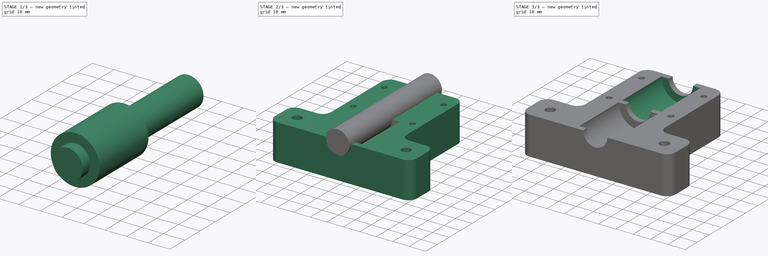
[diagram: build sequence overview — one tinted view per stage of 3, left to right]
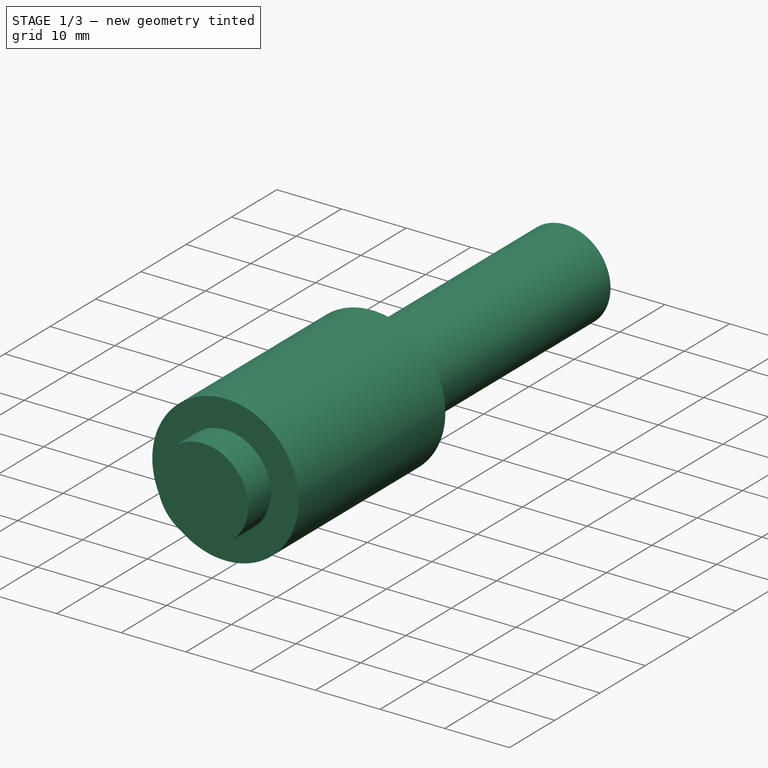
[diagram: stage 1 of 3 — iso view after this stage's code; geometry added in this stage tinted green]
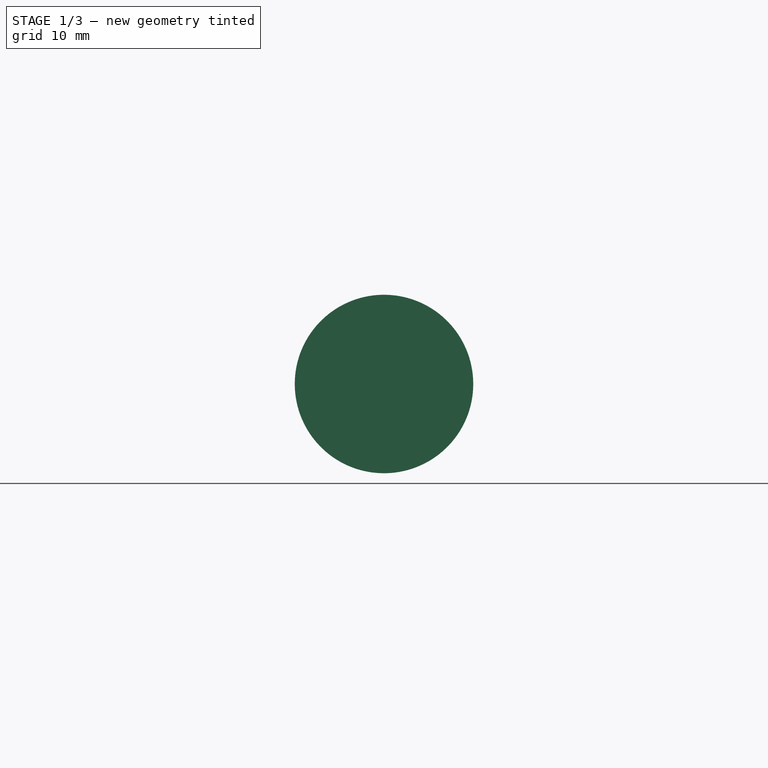
[diagram: stage 1 of 3 — front view after this stage's code; geometry added in this stage tinted green]
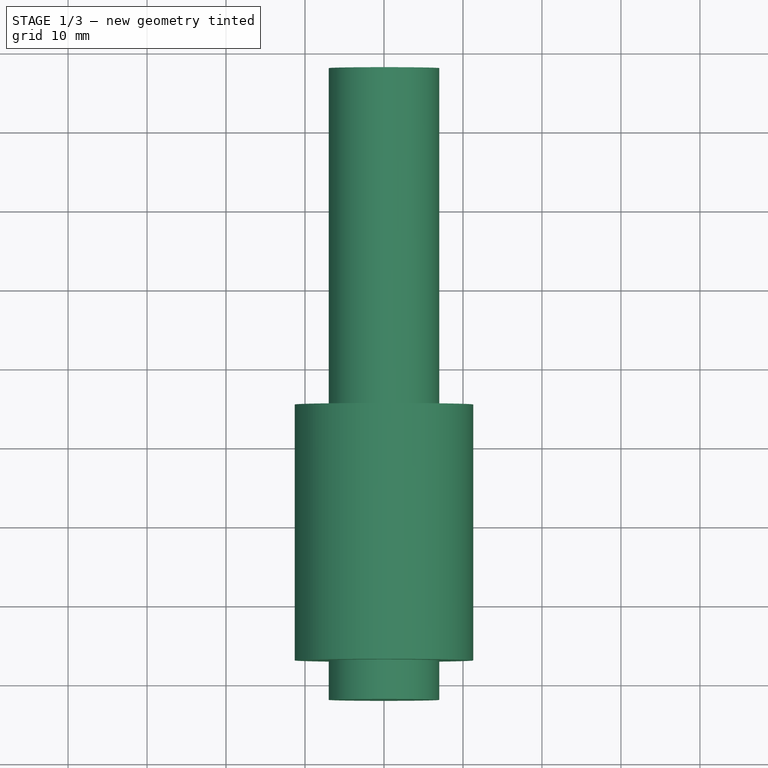
[diagram: stage 1 of 3 — top view after this stage's code; geometry added in this stage tinted green]
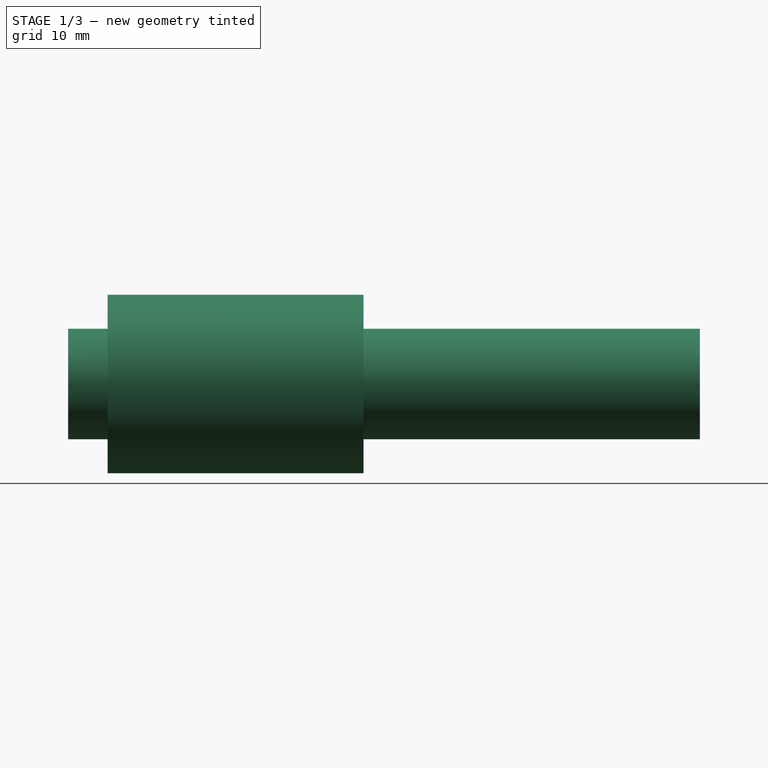
[diagram: stage 1 of 3 — right view after this stage's code; geometry added in this stage tinted green]
FCSTD DOCUMENT  (FreeCAD 0.15R4671 (Git))
Label: CoreXY_Z_Axis_LM12UU_Nut
License: All rights reserved
LicenseURL: http://es.wikipedia.org/wiki/Todos_los_derechos_reservados
objects: Part::Cut×3, Part::Cylinder×2, Sketcher::SketchObject×1, PartDesign::Pad×1, Part::Feature×1
note: 9 computed .brp shape members not serialized (recipe doc carries the construction recipe); baked Part::Feature solids carry a one-line shape summary decoded from their .brp

FEATURE [Part::Cylinder] Cylinder  label="Cilindro"
  Angle = 360
  Height = 32.4
  Placement = pos=(0,3,22) rot=(-1,0,0;1.5708rad)
  Radius = 11.3
FEATURE [Part::Cylinder] Cylinder002  label="Cilindro003"
  Angle = 360
  Height = 80
  Placement = pos=(0,-2,22) rot=(-1,0,0;1.5708rad)
  Radius = 7
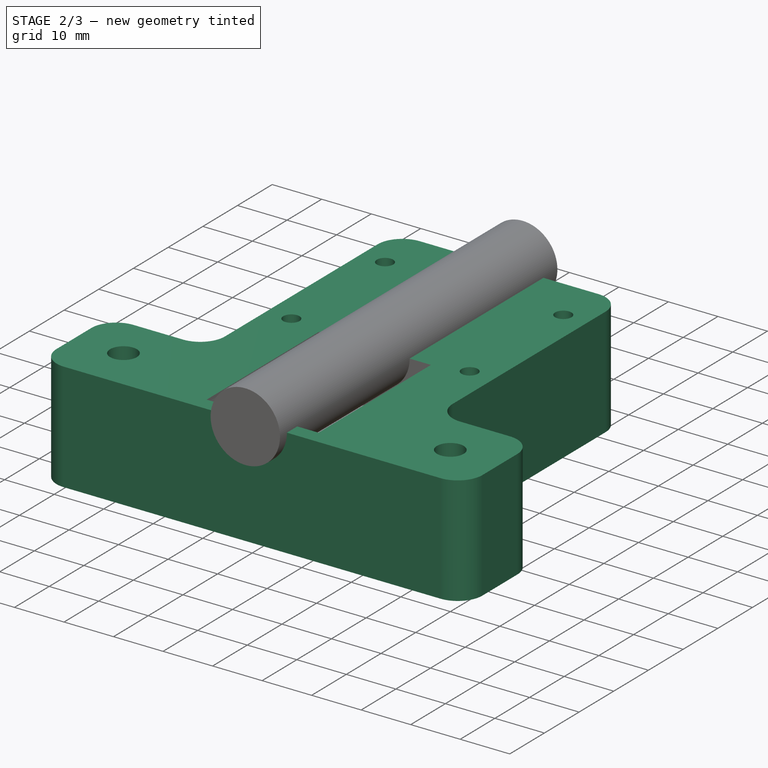
[diagram: stage 2 of 3 — iso view after this stage's code; geometry added in this stage tinted green]
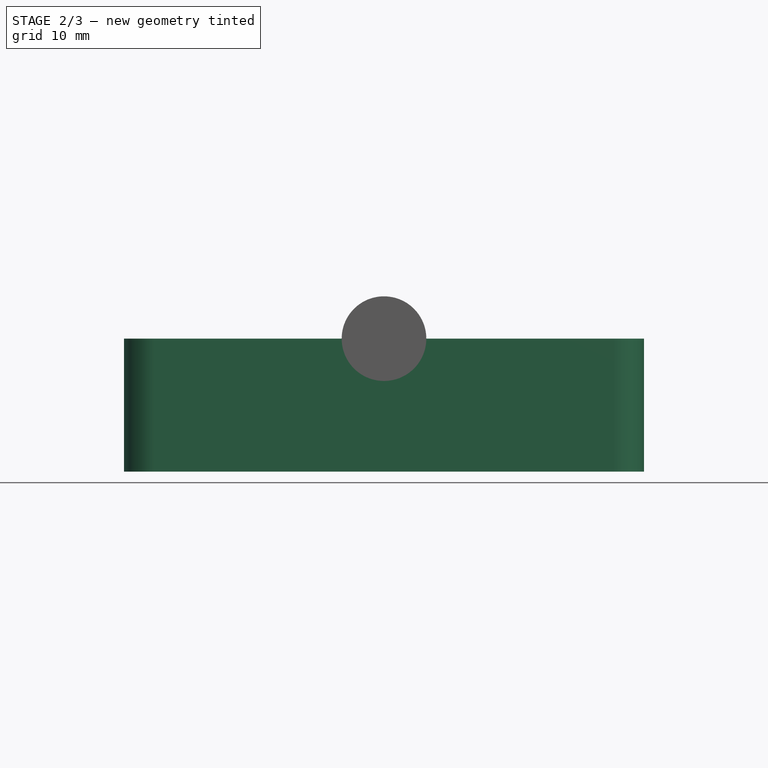
[diagram: stage 2 of 3 — front view after this stage's code; geometry added in this stage tinted green]
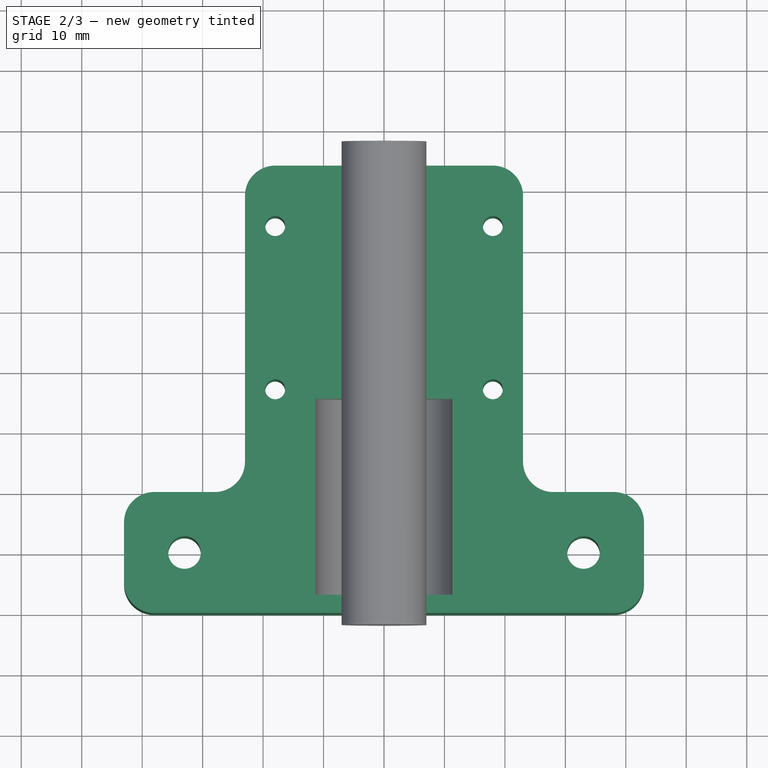
[diagram: stage 2 of 3 — top view after this stage's code; geometry added in this stage tinted green]
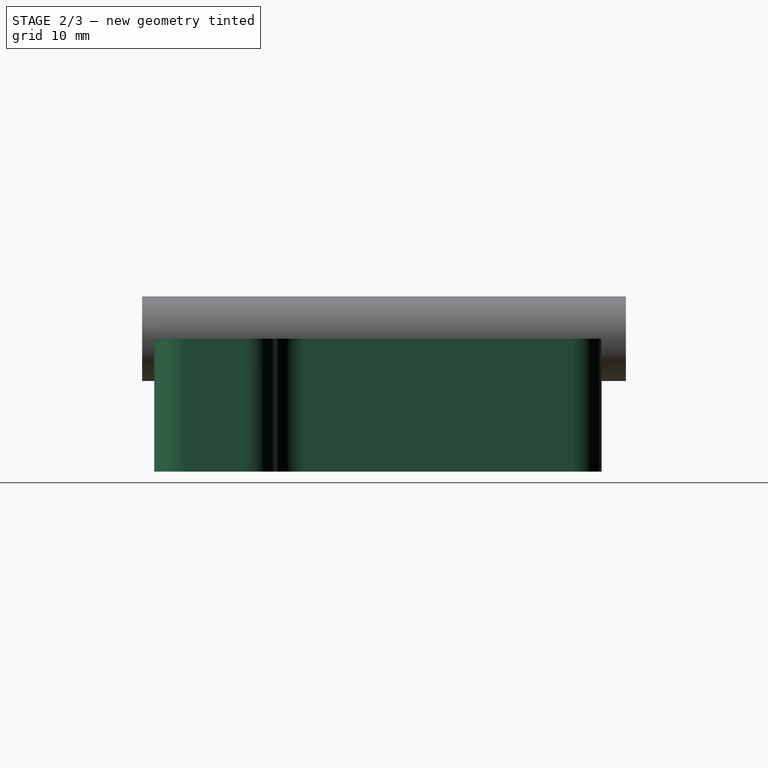
[diagram: stage 2 of 3 — right view after this stage's code; geometry added in this stage tinted green]
FEATURE [Sketcher::SketchObject] Sketch
  sketch-geometry (22):
    g0: LineSegment StartX=-38 StartY=0 StartZ=0 EndX=38 EndY=0 EndZ=0
    g1: ArcOfCircle CenterX=-38 CenterY=5 CenterZ=0 NormalX=0 NormalY=0 NormalZ=1 Radius=5 StartAngle=3.14159 EndAngle=4.71239
    g2: LineSegment StartX=-43 StartY=5 StartZ=0 EndX=-43 EndY=15 EndZ=0
    g3: ArcOfCircle CenterX=-38 CenterY=15 CenterZ=0 NormalX=0 NormalY=0 NormalZ=1 Radius=5 StartAngle=1.5708 EndAngle=3.14159
    g4: LineSegment StartX=-38 StartY=20 StartZ=0 EndX=-28 EndY=20 EndZ=0
    g5: ArcOfCircle CenterX=-28 CenterY=25 CenterZ=0 NormalX=0 NormalY=0 NormalZ=1 Radius=5 StartAngle=4.71239 EndAngle=6.28318
    g6: LineSegment StartX=-23 StartY=25 StartZ=0 EndX=-23 EndY=69 EndZ=0
    g7: ArcOfCircle CenterX=-18 CenterY=69 CenterZ=0 NormalX=0 NormalY=0 NormalZ=1 Radius=5 StartAngle=1.5708 EndAngle=3.14159
    g8: LineSegment StartX=-18 StartY=74 StartZ=0 EndX=18 EndY=74 EndZ=0
    g9: ArcOfCircle CenterX=38 CenterY=5 CenterZ=0 NormalX=0 NormalY=0 NormalZ=1 Radius=5 StartAngle=4.71239 EndAngle=6.28319
    g10: LineSegment StartX=43 StartY=5 StartZ=0 EndX=43 EndY=15 EndZ=0
    g11: ArcOfCircle CenterX=18 CenterY=69 CenterZ=0 NormalX=0 NormalY=0 NormalZ=1 Radius=5 StartAngle=6.28318 EndAngle=7.85398
    g12: LineSegment StartX=23 StartY=69 StartZ=0 EndX=23 EndY=25 EndZ=0
    g13: ArcOfCircle CenterX=28 CenterY=25 CenterZ=0 NormalX=0 NormalY=0 NormalZ=1 Radius=5 StartAngle=3.14159 EndAngle=4.71239
    g14: LineSegment StartX=28 StartY=20 StartZ=0 EndX=38 EndY=20 EndZ=0
    g15: ArcOfCircle CenterX=38 CenterY=15 CenterZ=0 NormalX=0 NormalY=0 NormalZ=1 Radius=5 StartAngle=1.46702e-07 EndAngle=1.5708
    g16: Circle CenterX=33 CenterY=10 CenterZ=0 NormalX=0 NormalY=0 NormalZ=1 Radius=2.7
    g17: Circle CenterX=-33 CenterY=10 CenterZ=0 NormalX=0 NormalY=0 NormalZ=1 Radius=2.7
    g18: Circle CenterX=18 CenterY=64 CenterZ=0 NormalX=0 NormalY=0 NormalZ=1 Radius=1.65
    g19: Circle CenterX=18 CenterY=37 CenterZ=0 NormalX=0 NormalY=0 NormalZ=1 Radius=1.65
    g20: Circle CenterX=-18 CenterY=37 CenterZ=0 NormalX=0 NormalY=0 NormalZ=1 Radius=1.65
    g21: Circle CenterX=-18 CenterY=64 CenterZ=0 NormalX=0 NormalY=0 NormalZ=1 Radius=1.65
  constraints (67):
    c: Horizontal(g0)
    c: Vertical(g2)
    c: Coincident(g1,g2)
    c: Coincident(g1,g0)
    c: Coincident(g2,g3)
    c: Tangent(g2,g3)
    c: Tangent(g1,g2)
    c: Tangent(g0,g1)
    c: Horizontal(g4)
    c: Coincident(g3,g4)
    c: Tangent(g4,g5) = -1.5708
    c: Vertical(g6)
    c: Tangent(g4,g3)
    c: Coincident(g6,g7)
    c: Tangent(g7,g6)
    c: Horizontal(g8)
    c: Coincident(g8,g7)
    c: Tangent(g8,g7)
    c: Coincident(g5,g6)
    c: Tangent(g5,g6)
    c: DistanceX(g-1,g6) = -23
    c: Radius(g3) = 5
    c: Radius(g1) = 5
    c: Radius(g5) = 5
    c: Equal(g7,g5)
    c: DistanceY(g3,g0) = -20
    c: DistanceY(g7,g0) = -74
    c: Coincident(g9,g0)
    c: Equal(g9,g1)
    c: Tangent(g9,g0)
    c: DistanceY(g-1,g0) = 0
    c: DistanceX(g2,g5) = 20
    c: Vertical(g10)
    c: Symmetric(g10,g1,g-2)
    c: Coincident(g10,g9)
    c: Symmetric(g10,g2,g-2)
    c: Symmetric(g8,g7,g-2)
    c: Symmetric(g11,g7,g-2)
    c: Coincident(g11,g8)
    c: Vertical(g12)
    c: Coincident(g12,g11)
    c: Coincident(g13,g12)
    c: Tangent(g12,g11)
    c: Tangent(g13,g12)
    c: Horizontal(g14)
    c: Coincident(g13,g14)
    c: Coincident(g15,g14)
    c: Coincident(g15,g10)
    c: Symmetric(g13,g4,g-2)
    c: Symmetric(g14,g3,g-2)
    c: Equal(g13,g5)
    c: Equal(g15,g3)
    c: DistanceY(g16,g0) = -10
    c: DistanceX(g16,g10) = 10
    c: Radius(g16) = 2.7
    c: Symmetric(g17,g16,g-2)
    c: Equal(g17,g16)
    c: DistanceY(g18,g8) = 10
    c: Radius(g18) = 1.65
    c: DistanceX(g18,g11) = 5
    c: DistanceY(g19,g16) = -27
    c: Equal(g19,g18)
    c: DistanceX(g19,g18) = 0
    c: Symmetric(g20,g19,g-2)
    c: Equal(g20,g19)
    c: Equal(g21,g18)
    c: Symmetric(g21,g18,g-2)
FEATURE [PartDesign::Pad] Pad
  Length = 22
  Length2 = 100
  Sketch = -> Sketch
  Type = 0
FEATURE [Part::Feature] Cylinder001  label="Cilindro2"
  Placement = pos=(0,38.4,22) rot=(-1,0,0;1.5708rad)
  shape: bbox 22.6 x 32.4 x 22.6 mm, 3 faces (baked)
FEATURE [Part::Cut] Cut
  Base = -> Pad
  Tool = -> Cylinder
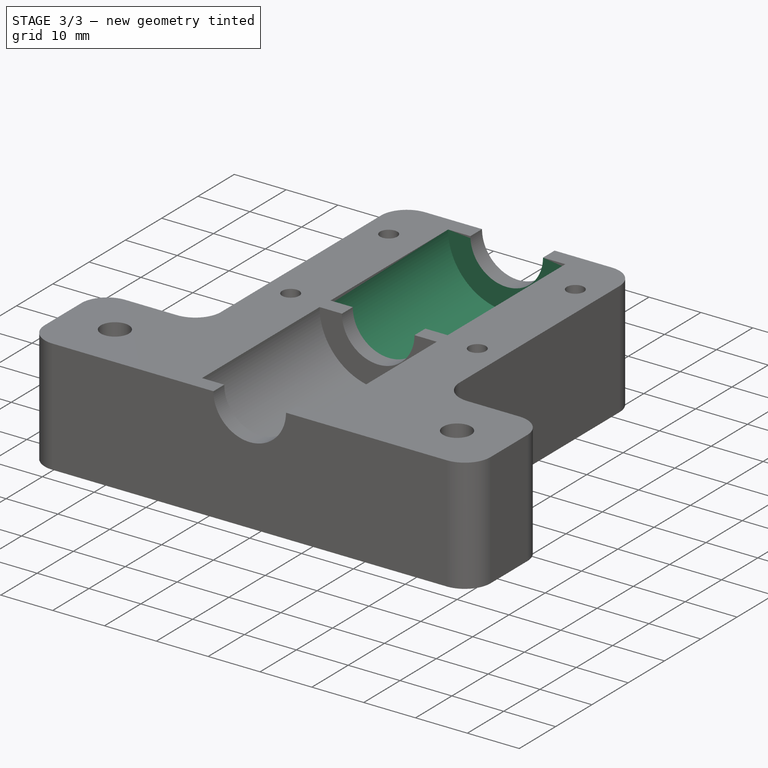
[diagram: stage 3 of 3 — iso view after this stage's code; geometry added in this stage tinted green]
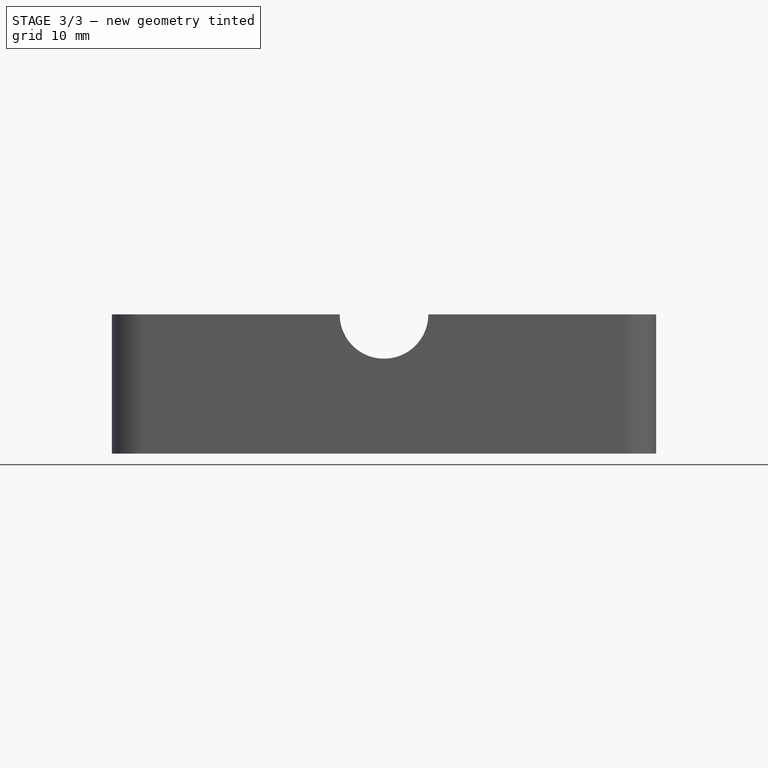
[diagram: stage 3 of 3 — front view after this stage's code; geometry added in this stage tinted green]
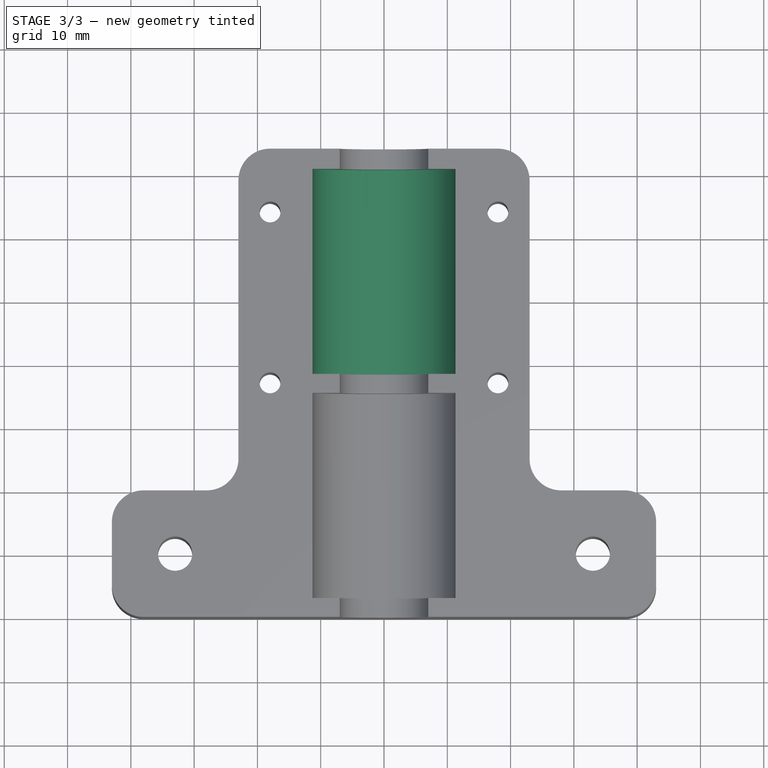
[diagram: stage 3 of 3 — top view after this stage's code; geometry added in this stage tinted green]
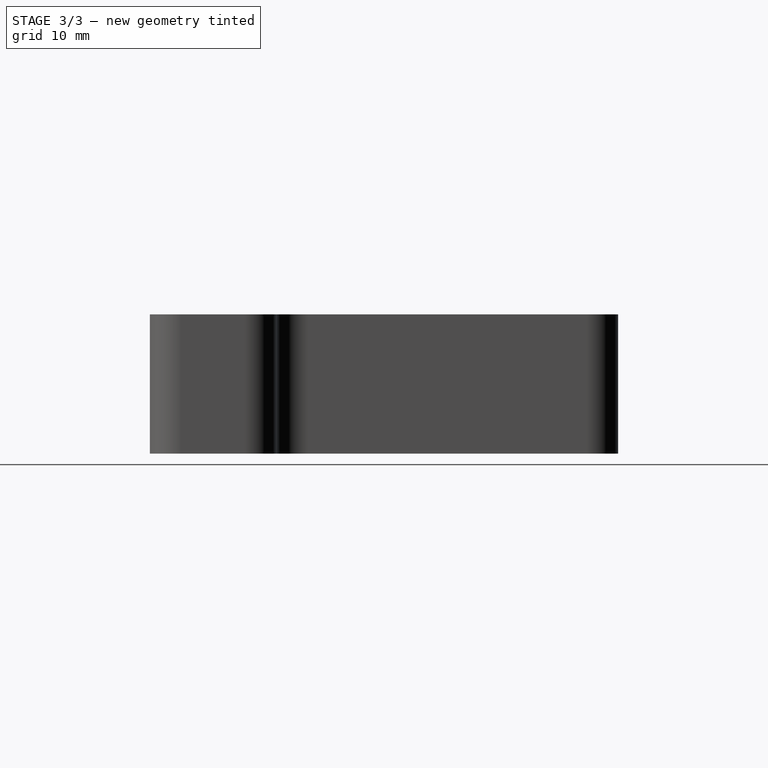
[diagram: stage 3 of 3 — right view after this stage's code; geometry added in this stage tinted green]
FEATURE [Part::Cut] Cut001  label="Z_axis_LM12UU_nut"
  Base = -> Cut
  Tool = -> Cylinder001
FEATURE [Part::Cut] Cut002
  Base = -> Cut001
  Tool = -> Cylinder002
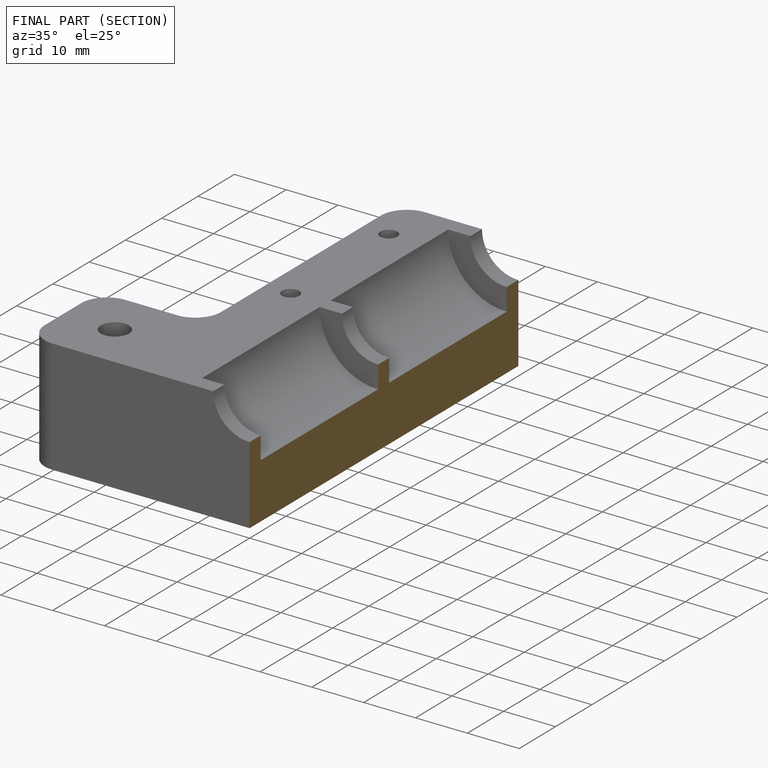
[diagram: finished part — half-section view (interior)]
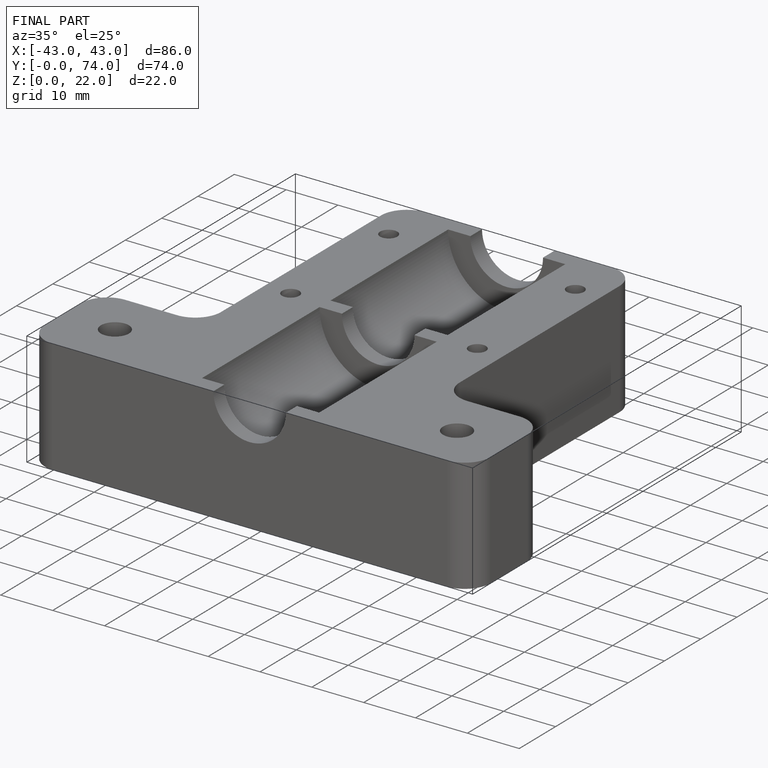
[diagram: finished part — iso view with bounding-box wireframe]
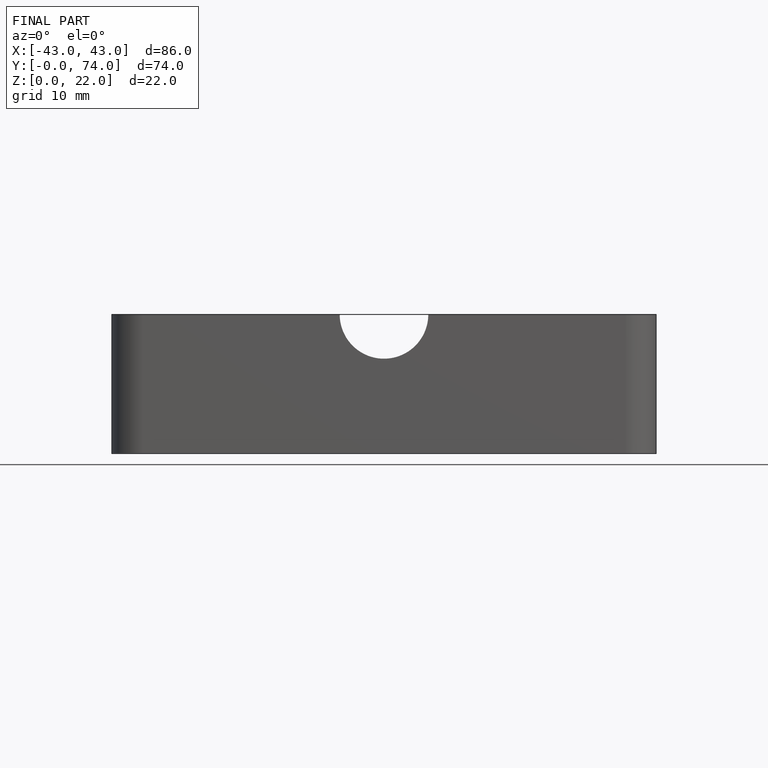
[diagram: finished part — front view with bounding-box wireframe]
